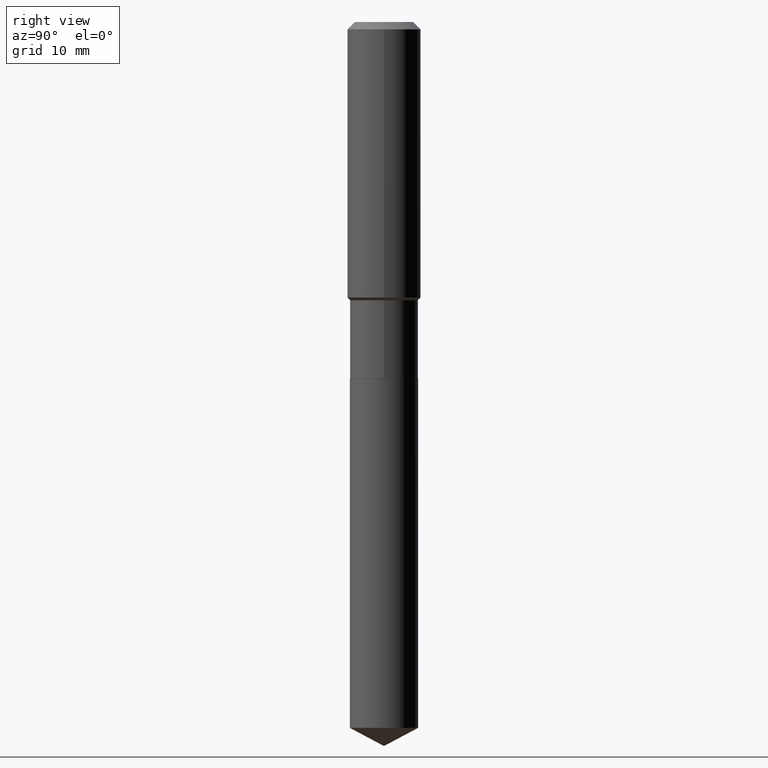
[diagram: clean part render]
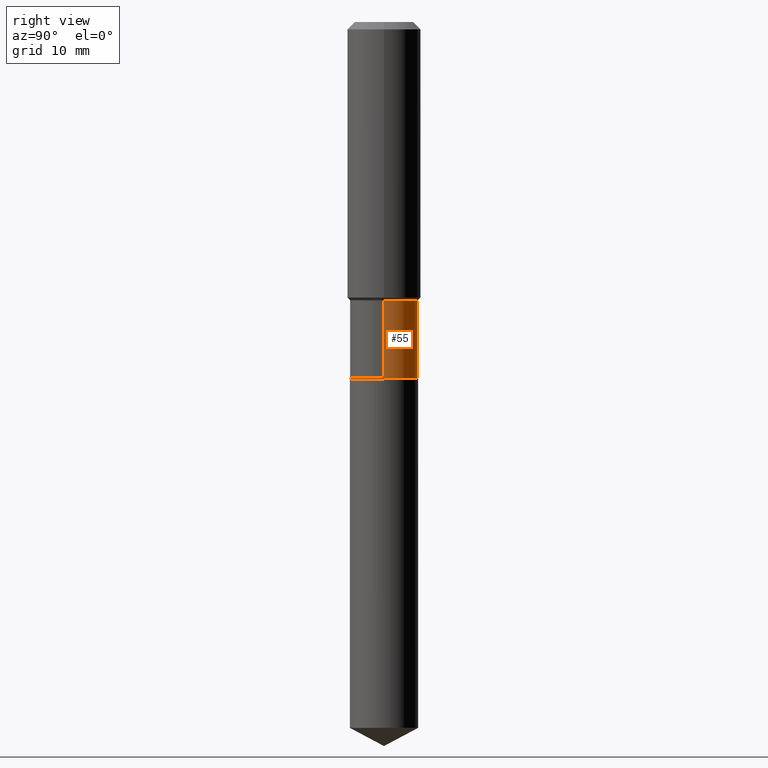
[diagram: same view with one face highlighted and labeled with its STEP entity id]
A machine part, right view. The second image highlights one B-rep face of the part: STEP entity #55.
In plain terms, the highlighted cylindrical surface (edge-blend (fillet) strip) has radius 5.5562 mm, axis along (-0, 0, 1).
Its self-contained STEP definition (entity closure, byte-faithful):
#3 = EDGE_CURVE ( 'NONE', #397, #275, #413, .T. ) ;
#14 = ORIENTED_EDGE ( 'NONE', *, *, #36, .F. ) ;
#36 = EDGE_CURVE ( 'NONE', #210, #397, #433, .T. ) ;
#41 = CIRCLE ( 'NONE', #465, 0.2187500000000000000 ) ;
#44 = CARTESIAN_POINT ( 'NONE',  ( 0.2187500000000000000, -9.516032389016987507E-15, -2.288000000000000256 ) ) ;
#55 = ADVANCED_FACE ( 'NONE', ( #148 ), #216, .T. ) ;
#61 = AXIS2_PLACEMENT_3D ( 'NONE', #368, #143, #72 ) ;
#72 = DIRECTION ( 'NONE',  ( 1.000000000000000000, -6.982962677686265922E-15, 0.000000000000000000 ) ) ;
#122 = CARTESIAN_POINT ( 'NONE',  ( -0.2187500000000000000, -5.556787808346616681E-15, -2.288000000000000256 ) ) ;
#143 = DIRECTION ( 'NONE',  ( -2.445468806185136597E-29, 3.491481338843145583E-15, 1.000000000000000000 ) ) ;
#146 = CARTESIAN_POINT ( 'NONE',  ( 0.000000000000000000, 0.000000000000000000, 0.000000000000000000 ) ) ;
#148 = FACE_OUTER_BOUND ( 'NONE', #242, .T. ) ;
#149 = CARTESIAN_POINT ( 'NONE',  ( 0.2187499999999999167, -7.761213868114422700E-15, -1.785400000000000098 ) ) ;
#181 = DIRECTION ( 'NONE',  ( -2.445468806185136877E-29, 3.491481338843145188E-15, 1.000000000000000000 ) ) ;
#201 = AXIS2_PLACEMENT_3D ( 'NONE', #146, #366, #290 ) ;
#209 = ORIENTED_EDGE ( 'NONE', *, *, #232, .T. ) ;
#210 = VERTEX_POINT ( 'NONE', #44 ) ;
#216 = CYLINDRICAL_SURFACE ( 'NONE', #201, 0.2187499999999999445 ) ;
#221 = ORIENTED_EDGE ( 'NONE', *, *, #3, .F. ) ;
#227 = DIRECTION ( 'NONE',  ( -2.445468806185136877E-29, 3.491481338843145188E-15, 1.000000000000000000 ) ) ;
#232 = EDGE_CURVE ( 'NONE', #422, #275, #416, .T. ) ;
#233 = CARTESIAN_POINT ( 'NONE',  ( -0.2187499999999999445, 1.554312234475218762E-15, -1.076017050993260482E-29 ) ) ;
#242 = EDGE_LOOP ( 'NONE', ( #247, #209, #221, #14 ) ) ;
#246 = VECTOR ( 'NONE', #227, 39.37007874015748143 ) ;
#247 = ORIENTED_EDGE ( 'NONE', *, *, #451, .T. ) ;
#260 = DIRECTION ( 'NONE',  ( 1.000000000000000000, -6.982962677686262766E-15, 0.000000000000000000 ) ) ;
#275 = VERTEX_POINT ( 'NONE', #304 ) ;
#290 = DIRECTION ( 'NONE',  ( 1.000000000000000000, -6.982962677686266711E-15, 4.876176775795935232E-29 ) ) ;
#302 = CARTESIAN_POINT ( 'NONE',  ( 5.595232628551593439E-29, -7.988509303273117453E-15, -2.288000000000000256 ) ) ;
#304 = CARTESIAN_POINT ( 'NONE',  ( -0.2187499999999999167, -5.556787808346616681E-15, -1.785400000000000098 ) ) ;
#322 = CARTESIAN_POINT ( 'NONE',  ( 0.2187499999999999445, -1.527523085743870449E-15, 1.066663669705360604E-29 ) ) ;
#366 = DIRECTION ( 'NONE',  ( -2.445468806185136597E-29, 3.491481338843145583E-15, 1.000000000000000000 ) ) ;
#368 = CARTESIAN_POINT ( 'NONE',  ( 4.366140006562942909E-29, -6.233690782370552646E-15, -1.785400000000000098 ) ) ;
#397 = VERTEX_POINT ( 'NONE', #149 ) ;
#403 = VECTOR ( 'NONE', #181, 39.37007874015748143 ) ;
#413 = CIRCLE ( 'NONE', #61, 0.2187499999999999167 ) ;
#416 = LINE ( 'NONE', #233, #246 ) ;
#422 = VERTEX_POINT ( 'NONE', #122 ) ;
#433 = LINE ( 'NONE', #322, #403 ) ;
#450 = DIRECTION ( 'NONE',  ( -2.445468806185136597E-29, 3.491481338843145583E-15, 1.000000000000000000 ) ) ;
#451 = EDGE_CURVE ( 'NONE', #210, #422, #41, .T. ) ;
#465 = AXIS2_PLACEMENT_3D ( 'NONE', #302, #450, #260 ) ;